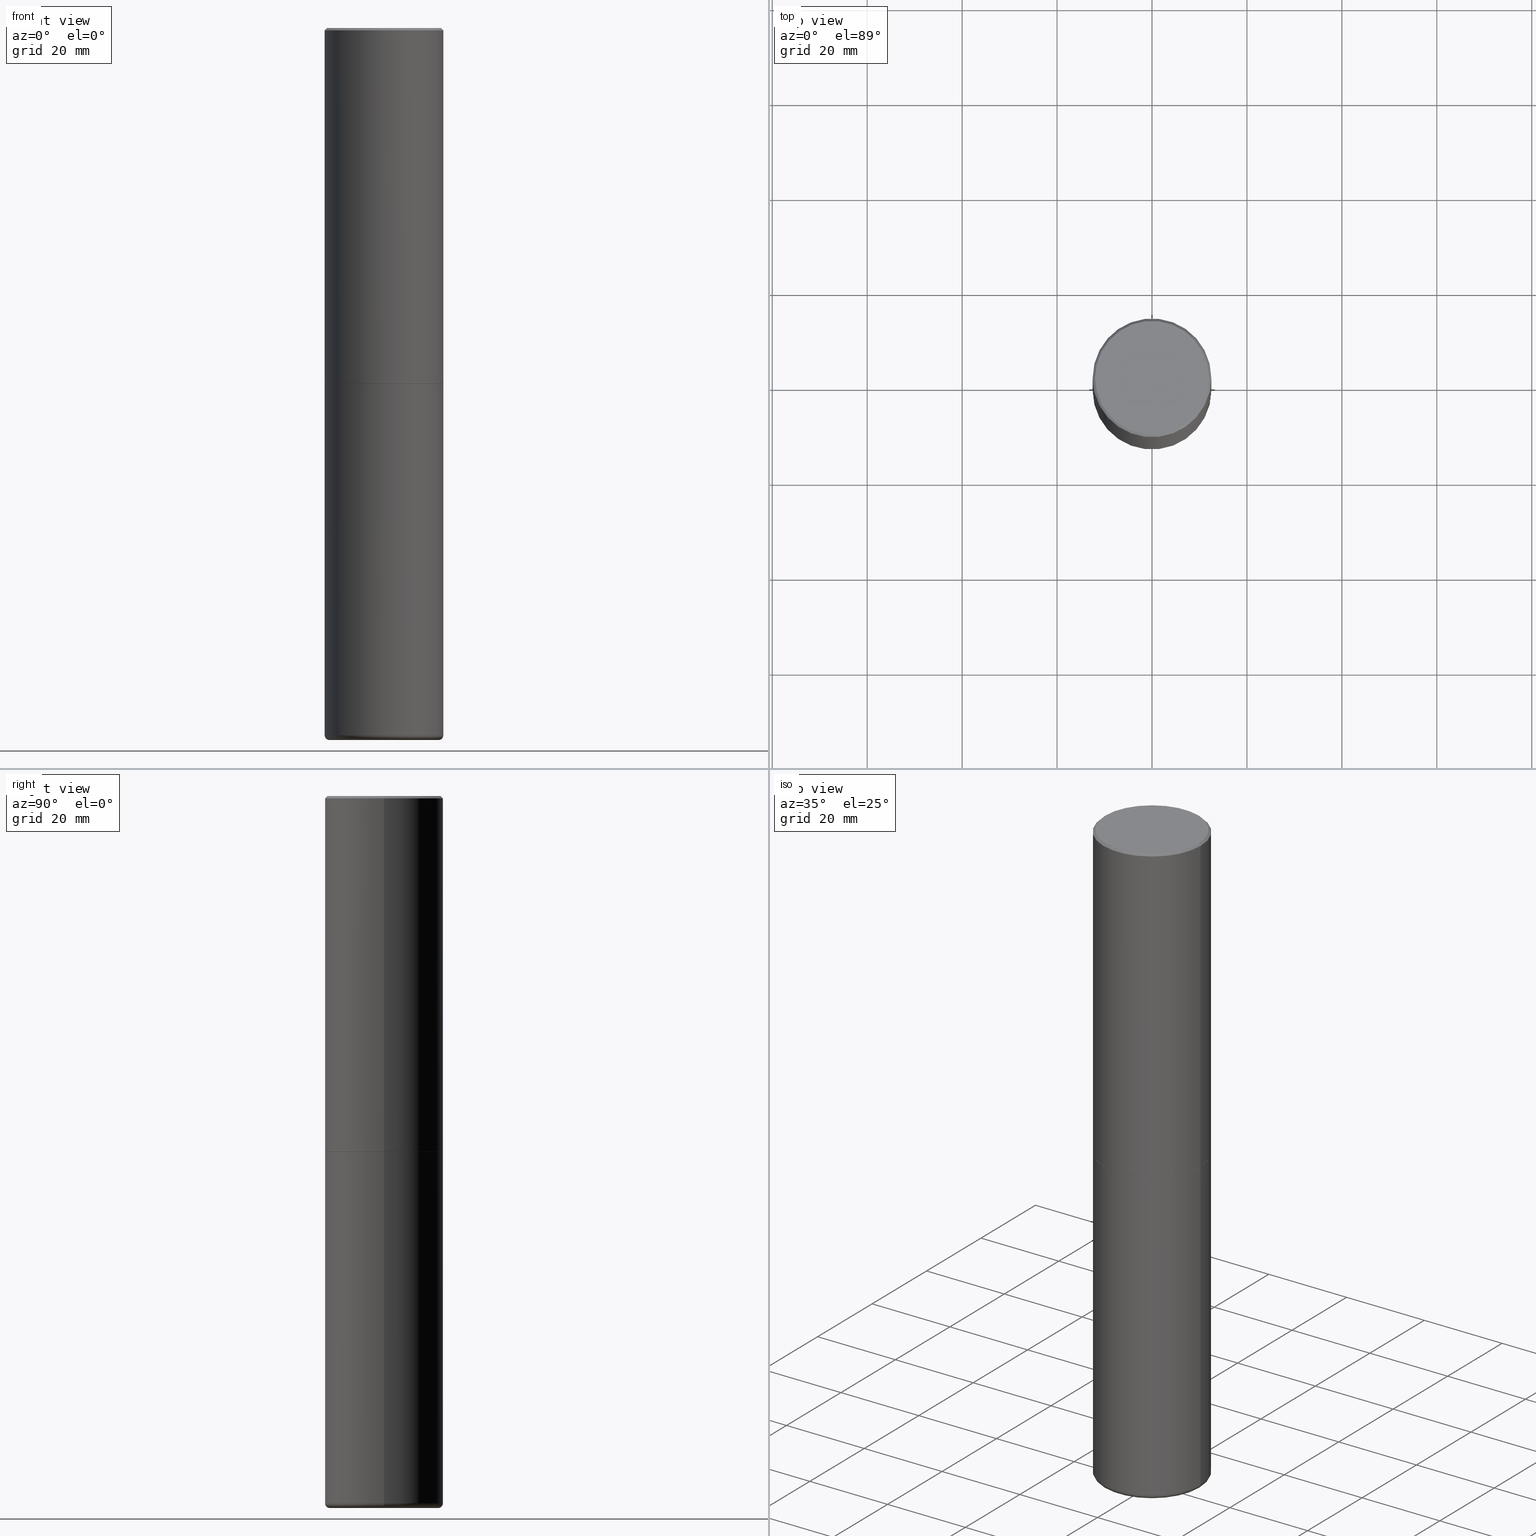
[diagram: canonical four-view strip — front | top / right | iso, engineering-drawing reading convention]
A machine part, canonical four-view strip (front | top / right | iso — engineering-drawing reading convention). The complete STEP part file that produces these views, byte-faithful:
ISO-10303-21;
HEADER;
FILE_DESCRIPTION (( 'STEP AP203' ),
    '1' );
FILE_NAME ('74573.STEP',
    '2024-03-06T15:31:16',
    ( '' ),
    ( '' ),
    'SwSTEP 2.0',
    'SolidWorks 2023',
    '' );
FILE_SCHEMA (( 'CONFIG_CONTROL_DESIGN' ));
ENDSEC;

DATA;
#1 = PRODUCT_DEFINITION ( 'UNKNOWN', '', #417, #48 ) ;
#2 = DIRECTION ( 'NONE',  ( 1.000000000000000000, -6.982962677686266711E-15, 4.875605319575677862E-29 ) ) ;
#3 = DIRECTION ( 'NONE',  ( -2.445468806185136597E-29, 3.491481338843145583E-15, 1.000000000000000000 ) ) ;
#4 = CARTESIAN_POINT ( 'NONE',  ( 4.071020515907357082E-45, -5.812338364483744108E-31, -1.664719871139160491E-16 ) ) ;
#5 = CIRCLE ( 'NONE', #205, 0.4921499999999999764 ) ;
#6 = CARTESIAN_POINT ( 'NONE',  ( 0.4921499999999999764, -1.374596203102545079E-14, -2.952700000000000102 ) ) ;
#7 = CARTESIAN_POINT ( 'NONE',  ( -0.4921499999999999764, 3.366835455046432478E-15, -0.02000000000000010797 ) ) ;
#8 = MANIFOLD_SOLID_BREP ( 'Body-Move/Copy2[1]', #270 ) ;
#9 = LINE ( 'NONE', #358, #70 ) ;
#10 = PRODUCT_DEFINITION_SHAPE ( 'NONE', 'NONE',  #1 ) ;
#11 = EDGE_CURVE ( 'NONE', #30, #402, #120, .T. ) ;
#12 = AXIS2_PLACEMENT_3D ( 'NONE', #4, #268, #2 ) ;
#13 = EDGE_LOOP ( 'NONE', ( #55, #191 ) ) ;
#14 = MECHANICAL_CONTEXT ( 'NONE', #296, 'mechanical' ) ;
#15 = ORIENTED_EDGE ( 'NONE', *, *, #50, .F. ) ;
#16 = AXIS2_PLACEMENT_3D ( 'NONE', #38, #393, #144 ) ;
#17 = AXIS2_PLACEMENT_3D ( 'NONE', #143, #330, #264 ) ;
#18 = EDGE_CURVE ( 'NONE', #343, #65, #372, .T. ) ;
#19 = ORIENTED_EDGE ( 'NONE', *, *, #355, .T. ) ;
#20 = DIRECTION ( 'NONE',  ( 1.000000000000000000, -6.982962677686269077E-15, 0.000000000000000000 ) ) ;
#21 = DIRECTION ( 'NONE',  ( -1.000000000000000000, 6.982962677686265922E-15, -4.876176775795935793E-29 ) ) ;
#22 = DIRECTION ( 'NONE',  ( -2.445468806185136597E-29, 3.491481338843145583E-15, 1.000000000000000000 ) ) ;
#23 = EDGE_LOOP ( 'NONE', ( #15, #127, #347, #285 ) ) ;
#24 = ORIENTED_EDGE ( 'NONE', *, *, #117, .F. ) ;
#25 = CARTESIAN_POINT ( 'NONE',  ( -0.4921500000000000874, -1.698444260774444222E-14, -5.866100000000000314 ) ) ;
#26 = AXIS2_PLACEMENT_3D ( 'NONE', #134, #260, #130 ) ;
#27 = CARTESIAN_POINT ( 'NONE',  ( 1.434536456396262923E-28, -2.048137868178777591E-14, -5.866100000000000314 ) ) ;
#28 = CARTESIAN_POINT ( 'NONE',  ( 0.000000000000000000, 0.000000000000000000, 0.000000000000000000 ) ) ;
#29 = ORIENTED_EDGE ( 'NONE', *, *, #187, .T. ) ;
#30 = VERTEX_POINT ( 'NONE', #408 ) ;
#31 = DIRECTION ( 'NONE',  ( 1.000000000000000000, -6.982962677686268288E-15, 0.000000000000000000 ) ) ;
#32 = DIRECTION ( 'NONE',  ( 1.000000000000000000, -6.982962677686268288E-15, 0.000000000000000000 ) ) ;
#33 = LINE ( 'NONE', #259, #392 ) ;
#34 = AXIS2_PLACEMENT_3D ( 'NONE', #226, #352, #21 ) ;
#35 = APPROVAL_PERSON_ORGANIZATION ( #252, #44, #336 ) ;
#36 =( CONVERSION_BASED_UNIT ( 'INCH', #37 ) LENGTH_UNIT ( ) NAMED_UNIT ( #391 ) );
#37 = LENGTH_MEASURE_WITH_UNIT ( LENGTH_MEASURE( 0.02539999999999999897 ), #333 );
#38 = CARTESIAN_POINT ( 'NONE',  ( 7.220735744022852519E-29, -1.030929694920215502E-14, -2.952700000000000102 ) ) ;
#39 = AXIS2_PLACEMENT_3D ( 'NONE', #199, #101, #227 ) ;
#40 = LOCAL_TIME ( 10, 31, 16.00000000000000000, #119 ) ;
#41 = DIRECTION ( 'NONE',  ( 1.000000000000000000, -6.982962677686265922E-15, 4.876176775795935793E-29 ) ) ;
#42 = EDGE_CURVE ( 'NONE', #65, #158, #179, .T. ) ;
#43 = DATE_AND_TIME ( #178, #368 ) ;
#44 = APPROVAL ( #122, 'UNSPECIFIED' ) ;
#45 = CONICAL_SURFACE ( 'NONE', #91, 0.4911499999999999755, 0.7853981633977213939 ) ;
#46 = LOCAL_TIME ( 10, 31, 16.00000000000000000, #56 ) ;
#47 = CALENDAR_DATE ( 2024, 6, 3 ) ;
#48 = DESIGN_CONTEXT ( 'detailed design', #207, 'design' ) ;
#49 = CARTESIAN_POINT ( 'NONE',  ( 4.890937612370299433E-31, -6.982962677686328587E-17, -0.02000000000000010797 ) ) ;
#50 = EDGE_CURVE ( 'NONE', #30, #170, #75, .T. ) ;
#51 = DATE_TIME_ROLE ( 'classification_date' ) ;
#52 = CARTESIAN_POINT ( 'NONE',  ( -0.4911499999999999755, -6.819466302516422338E-15, -2.952700000000000102 ) ) ;
#53 = COORDINATED_UNIVERSAL_TIME_OFFSET ( 5, 0, .BEHIND. ) ;
#54 = ORIENTED_EDGE ( 'NONE', *, *, #92, .T. ) ;
#55 = ORIENTED_EDGE ( 'NONE', *, *, #18, .F. ) ;
#56 = COORDINATED_UNIVERSAL_TIME_OFFSET ( 5, 0, .BEHIND. ) ;
#57 = CONICAL_SURFACE ( 'NONE', #114, 0.4921499999999999764, 0.7853981633974479459 ) ;
#58 = APPROVAL_PERSON_ORGANIZATION ( #250, #342, #366 ) ;
#59 = EDGE_CURVE ( 'NONE', #188, #170, #304, .T. ) ;
#60 = EDGE_LOOP ( 'NONE', ( #24, #321 ) ) ;
#61 = CARTESIAN_POINT ( 'NONE',  ( -0.4527499999999999858, -1.726439644563392242E-14, -5.866100000000000314 ) ) ;
#62 = VERTEX_POINT ( 'NONE', #181 ) ;
#63 = CARTESIAN_POINT ( 'NONE',  ( 0.000000000000000000, 0.000000000000000000, 0.000000000000000000 ) ) ;
#64 = PRODUCT_RELATED_PRODUCT_CATEGORY ( 'detail', '', ( #228 ) ) ;
#65 = VERTEX_POINT ( 'NONE', #308 ) ;
#66 = DIRECTION ( 'NONE',  ( -6.982962677686266711E-15, -1.000000000000000000, 3.491481338843145583E-15 ) ) ;
#67 = FACE_OUTER_BOUND ( 'NONE', #340, .T. ) ;
#68 = PLANE ( 'NONE',  #292 ) ;
#69 = EDGE_CURVE ( 'NONE', #320, #62, #135, .T. ) ;
#70 = VECTOR ( 'NONE', #269, 39.37007874015748143 ) ;
#71 = FACE_OUTER_BOUND ( 'NONE', #371, .T. ) ;
#72 = FACE_OUTER_BOUND ( 'NONE', #313, .T. ) ;
#73 = CC_DESIGN_DATE_AND_TIME_ASSIGNMENT ( #116, #51, ( #249 ) ) ;
#74 = DIRECTION ( 'NONE',  ( -1.000000000000000000, 6.982962677686265922E-15, 0.000000000000000000 ) ) ;
#75 = CIRCLE ( 'NONE', #145, 0.03940000000000033753 ) ;
#76 = ADVANCED_FACE ( 'NONE', ( #397 ), #109, .T. ) ;
#77 =( NAMED_UNIT ( * ) SI_UNIT ( $, .STERADIAN. ) SOLID_ANGLE_UNIT ( ) );
#78 = FACE_OUTER_BOUND ( 'NONE', #312, .T. ) ;
#79 = PERSON_AND_ORGANIZATION_ROLE ( 'creator' ) ;
#80 = CC_DESIGN_PERSON_AND_ORGANIZATION_ASSIGNMENT ( #272, #215, ( #228 ) ) ;
#81 = PERSON_AND_ORGANIZATION ( #345, #410 ) ;
#82 = CIRCLE ( 'NONE', #356, 0.03940000000000033753 ) ;
#83 = AXIS2_PLACEMENT_3D ( 'NONE', #113, #234, #361 ) ;
#84 = APPROVAL_ROLE ( '' ) ;
#85 = CARTESIAN_POINT ( 'NONE',  ( -0.4921499999999999764, -1.189840174145163414E-14, -2.952700000000000102 ) ) ;
#86 = COORDINATED_UNIVERSAL_TIME_OFFSET ( 5, 0, .BEHIND. ) ;
#87 = VERTEX_POINT ( 'NONE', #85 ) ;
#88 = VERTEX_POINT ( 'NONE', #161 ) ;
#89 = CALENDAR_DATE ( 2024, 6, 3 ) ;
#90 = ORIENTED_EDGE ( 'NONE', *, *, #247, .T. ) ;
#91 = AXIS2_PLACEMENT_3D ( 'NONE', #353, #100, #224 ) ;
#92 = EDGE_CURVE ( 'NONE', #87, #338, #339, .T. ) ;
#93 = ORIENTED_EDGE ( 'NONE', *, *, #388, .F. ) ;
#94 = ORIENTED_EDGE ( 'NONE', *, *, #69, .F. ) ;
#95 = CARTESIAN_POINT ( 'NONE',  ( 0.4911499999999999755, -1.373897906834776478E-14, -2.952700000000000102 ) ) ;
#96 = CYLINDRICAL_SURFACE ( 'NONE', #335, 0.4921500000000000874 ) ;
#97 = DIRECTION ( 'NONE',  ( 1.000000000000000000, -6.982962677686265922E-15, 0.000000000000000000 ) ) ;
#98 = EDGE_CURVE ( 'NONE', #278, #223, #364, .T. ) ;
#99 = ORIENTED_EDGE ( 'NONE', *, *, #103, .T. ) ;
#100 = DIRECTION ( 'NONE',  ( -2.445468806185136597E-29, 3.491481338843145583E-15, 1.000000000000000000 ) ) ;
#101 = DIRECTION ( 'NONE',  ( -2.445468806185136597E-29, 3.491481338843145583E-15, 1.000000000000000000 ) ) ;
#102 = FACE_OUTER_BOUND ( 'NONE', #13, .T. ) ;
#103 = EDGE_CURVE ( 'NONE', #88, #62, #389, .T. ) ;
#104 = DIRECTION ( 'NONE',  ( -2.445468806185136877E-29, 3.491481338843145188E-15, 1.000000000000000000 ) ) ;
#105 = DIRECTION ( 'NONE',  ( 1.000000000000000000, -6.982962677686265922E-15, 0.000000000000000000 ) ) ;
#106 = FACE_OUTER_BOUND ( 'NONE', #60, .T. ) ;
#107 = ADVANCED_FACE ( 'NONE', ( #78 ), #157, .T. ) ;
#108 = EDGE_LOOP ( 'NONE', ( #182, #54 ) ) ;
#109 = TOROIDAL_SURFACE ( 'NONE', #140, 0.4527499999999999858, 0.03940000000000033753 ) ;
#110 = CIRCLE ( 'NONE', #386, 0.4721500000000000696 ) ;
#111 = DIRECTION ( 'NONE',  ( 2.445468806185136597E-29, -3.491481338843145583E-15, -1.000000000000000000 ) ) ;
#112 = CARTESIAN_POINT ( 'NONE',  ( 4.890937612370299433E-31, -6.982962677686328587E-17, -0.02000000000000010797 ) ) ;
#113 = CARTESIAN_POINT ( 'NONE',  ( 4.488705641877112035E-29, -3.487222041955580978E-14, -5.905500000000000860 ) ) ;
#114 = AXIS2_PLACEMENT_3D ( 'NONE', #383, #111, #173 ) ;
#115 = LOCAL_TIME ( 10, 31, 16.00000000000000000, #53 ) ;
#116 = DATE_AND_TIME ( #47, #40 ) ;
#117 = EDGE_CURVE ( 'NONE', #402, #30, #409, .T. ) ;
#118 = DIRECTION ( 'NONE',  ( -2.445468806185136877E-29, 3.491481338843145188E-15, 1.000000000000000000 ) ) ;
#119 = COORDINATED_UNIVERSAL_TIME_OFFSET ( 5, 0, .BEHIND. ) ;
#120 = CIRCLE ( 'NONE', #39, 0.4527499999999999858 ) ;
#121 = AXIS2_PLACEMENT_3D ( 'NONE', #328, #169, #295 ) ;
#122 = APPROVAL_STATUS ( 'not_yet_approved' ) ;
#123 = EDGE_CURVE ( 'NONE', #343, #88, #280, .T. ) ;
#124 = PERSON_AND_ORGANIZATION_ROLE ( 'design_supplier' ) ;
#125 = ORIENTED_EDGE ( 'NONE', *, *, #18, .T. ) ;
#126 = EDGE_LOOP ( 'NONE', ( #29, #155, #290, #405 ) ) ;
#127 = ORIENTED_EDGE ( 'NONE', *, *, #11, .T. ) ;
#128 = VECTOR ( 'NONE', #380, 39.37007874015748143 ) ;
#129 = CC_DESIGN_PERSON_AND_ORGANIZATION_ASSIGNMENT ( #334, #208, ( #417 ) ) ;
#130 = DIRECTION ( 'NONE',  ( 1.000000000000000000, -6.982962677686265922E-15, 4.876176775795935793E-29 ) ) ;
#131 = DIRECTION ( 'NONE',  ( -2.445468806185136597E-29, 3.491481338843145583E-15, 1.000000000000000000 ) ) ;
#132 = ADVANCED_FACE ( 'NONE', ( #197 ), #258, .F. ) ;
#133 = DIRECTION ( 'NONE',  ( 1.000000000000000000, -6.982962677686265922E-15, 4.876176775795935793E-29 ) ) ;
#134 = CARTESIAN_POINT ( 'NONE',  ( 0.000000000000000000, 0.000000000000000000, 0.000000000000000000 ) ) ;
#135 = CIRCLE ( 'NONE', #378, 0.4921499999999999764 ) ;
#136 = DIRECTION ( 'NONE',  ( -1.000000000000000000, 6.982962677686265922E-15, -4.876176775795935793E-29 ) ) ;
#137 = DIRECTION ( 'NONE',  ( 1.000000000000000000, -6.982962677686266711E-15, 4.875605319575677862E-29 ) ) ;
#138 = DIRECTION ( 'NONE',  ( 1.000000000000000000, -6.982962677686268288E-15, 0.000000000000000000 ) ) ;
#139 = APPROVAL ( #367, 'UNSPECIFIED' ) ;
#140 = AXIS2_PLACEMENT_3D ( 'NONE', #175, #341, #192 ) ;
#141 = CC_DESIGN_APPROVAL ( #44, ( #417 ) ) ;
#142 = ORIENTED_EDGE ( 'NONE', *, *, #263, .F. ) ;
#143 = CARTESIAN_POINT ( 'NONE',  ( 4.890937612370299433E-31, -6.982962677686328587E-17, -0.02000000000000010797 ) ) ;
#144 = DIRECTION ( 'NONE',  ( 1.000000000000000000, -6.982962677686265922E-15, 0.000000000000000000 ) ) ;
#145 = AXIS2_PLACEMENT_3D ( 'NONE', #61, #189, #369 ) ;
#146 = APPLICATION_PROTOCOL_DEFINITION ( 'international standard', 'config_control_design', 1994, #207 ) ;
#147 = MANIFOLD_SOLID_BREP ( 'Body-Move/Copy2[2]', #225 ) ;
#148 = ADVANCED_FACE ( 'NONE', ( #67 ), #45, .T. ) ;
#149 = CIRCLE ( 'NONE', #16, 0.4921499999999999764 ) ;
#150 = ORIENTED_EDGE ( 'NONE', *, *, #294, .F. ) ;
#151 = CC_DESIGN_APPROVAL ( #342, ( #1 ) ) ;
#152 = ORIENTED_EDGE ( 'NONE', *, *, #388, .T. ) ;
#153 = DATE_TIME_ROLE ( 'creation_date' ) ;
#154 = ORIENTED_EDGE ( 'NONE', *, *, #98, .T. ) ;
#155 = ORIENTED_EDGE ( 'NONE', *, *, #294, .T. ) ;
#156 = DIRECTION ( 'NONE',  ( 1.000000000000000000, -6.982962677686265922E-15, 0.000000000000000000 ) ) ;
#157 = CYLINDRICAL_SURFACE ( 'NONE', #253, 0.4921499999999999764 ) ;
#158 = VERTEX_POINT ( 'NONE', #193 ) ;
#159 = EDGE_CURVE ( 'NONE', #65, #343, #195, .T. ) ;
#160 = TOROIDAL_SURFACE ( 'NONE', #318, 0.4527499999999999858, 0.03940000000000033753 ) ;
#161 = CARTESIAN_POINT ( 'NONE',  ( 0.4921500000000003094, -1.374247054968661252E-14, -2.951700000000000212 ) ) ;
#162 = CARTESIAN_POINT ( 'NONE',  ( 0.4921500000000000874, -2.391804376361107326E-14, -5.866100000000000314 ) ) ;
#163 = LINE ( 'NONE', #374, #128 ) ;
#164 = DIRECTION ( 'NONE',  ( -2.445468806185136597E-29, 3.491481338843145583E-15, 1.000000000000000000 ) ) ;
#165 = VECTOR ( 'NONE', #221, 39.37007874015748143 ) ;
#166 = CARTESIAN_POINT ( 'NONE',  ( 3.297005828269570364E-15, 0.4721500000000000696, -1.731738907691749419E-15 ) ) ;
#167 = EDGE_LOOP ( 'NONE', ( #154, #19 ) ) ;
#168 = EDGE_CURVE ( 'NONE', #170, #87, #163, .T. ) ;
#169 = DIRECTION ( 'NONE',  ( 0.000000000000000000, 0.000000000000000000, 1.000000000000000000 ) ) ;
#170 = VERTEX_POINT ( 'NONE', #25 ) ;
#171 = CARTESIAN_POINT ( 'NONE',  ( 7.218290275216666916E-29, -1.030580546786331359E-14, -2.951700000000000212 ) ) ;
#172 = AXIS2_PLACEMENT_3D ( 'NONE', #348, #198, #31 ) ;
#173 = DIRECTION ( 'NONE',  ( -1.000000000000000000, 6.982962677686265922E-15, 0.000000000000000000 ) ) ;
#174 = UNCERTAINTY_MEASURE_WITH_UNIT (LENGTH_MEASURE( 1.000000000000000082E-05 ), #36, 'distance_accuracy_value', 'NONE');
#175 = CARTESIAN_POINT ( 'NONE',  ( 1.434536456396262923E-28, -2.048137868178777591E-14, -5.866100000000000314 ) ) ;
#176 = DATE_AND_TIME ( #396, #115 ) ;
#177 = CC_DESIGN_APPROVAL ( #139, ( #249 ) ) ;
#178 = CALENDAR_DATE ( 2024, 6, 3 ) ;
#179 = LINE ( 'NONE', #52, #265 ) ;
#180 = COORDINATED_UNIVERSAL_TIME_OFFSET ( 5, 0, .BEHIND. ) ;
#181 = CARTESIAN_POINT ( 'NONE',  ( 0.4921499999999999764, -3.446223716380122349E-15, -0.02000000000000010797 ) ) ;
#182 = ORIENTED_EDGE ( 'NONE', *, *, #307, .T. ) ;
#183 = APPROVAL_DATE_TIME ( #303, #44 ) ;
#184 = AXIS2_PLACEMENT_3D ( 'NONE', #112, #297, #74 ) ;
#185 = CONICAL_SURFACE ( 'NONE', #332, 0.4911499999999999755, 0.7853981633977213939 ) ;
#186 = ORIENTED_EDGE ( 'NONE', *, *, #123, .T. ) ;
#187 = EDGE_CURVE ( 'NONE', #88, #158, #349, .T. ) ;
#188 = VERTEX_POINT ( 'NONE', #162 ) ;
#189 = DIRECTION ( 'NONE',  ( 7.105427357601001859E-15, 1.000000000000000000, -3.491481338843145583E-15 ) ) ;
#190 = EDGE_CURVE ( 'NONE', #402, #188, #82, .T. ) ;
#191 = ORIENTED_EDGE ( 'NONE', *, *, #159, .F. ) ;
#192 = DIRECTION ( 'NONE',  ( 1.000000000000000000, -6.982962677686269077E-15, 4.883557194083114022E-29 ) ) ;
#193 = CARTESIAN_POINT ( 'NONE',  ( -0.4921500000000003094, -1.690881473276751010E-15, -2.951700000000000212 ) ) ;
#194 = ORIENTED_EDGE ( 'NONE', *, *, #190, .F. ) ;
#195 = CIRCLE ( 'NONE', #172, 0.4911499999999999755 ) ;
#196 = FACE_OUTER_BOUND ( 'NONE', #309, .T. ) ;
#197 = FACE_OUTER_BOUND ( 'NONE', #108, .T. ) ;
#198 = DIRECTION ( 'NONE',  ( -2.445468806185136597E-29, 3.491481338843145583E-15, 1.000000000000000000 ) ) ;
#199 = CARTESIAN_POINT ( 'NONE',  ( 1.444171603492632494E-28, -2.061894304653819828E-14, -5.905500000000000860 ) ) ;
#200 = CC_DESIGN_DATE_AND_TIME_ASSIGNMENT ( #245, #153, ( #1 ) ) ;
#201 = CARTESIAN_POINT ( 'NONE',  ( 0.4911499999999999755, -1.373897906834776478E-14, -2.952700000000000102 ) ) ;
#202 = CARTESIAN_POINT ( 'NONE',  ( 4.071020515907357082E-45, -5.812338364483744108E-31, -1.664719871139160491E-16 ) ) ;
#203 = ADVANCED_FACE ( 'NONE', ( #375 ), #96, .T. ) ;
#204 = FACE_OUTER_BOUND ( 'NONE', #262, .T. ) ;
#205 = AXIS2_PLACEMENT_3D ( 'NONE', #261, #131, #97 ) ;
#206 = ADVANCED_FACE ( 'NONE', ( #317 ), #160, .T. ) ;
#207 = APPLICATION_CONTEXT ( 'configuration controlled 3d designs of mechanical parts and assemblies' ) ;
#208 = PERSON_AND_ORGANIZATION_ROLE ( 'creator' ) ;
#209 = AXIS2_PLACEMENT_3D ( 'NONE', #401, #301, #105 ) ;
#210 = PERSON_AND_ORGANIZATION ( #345, #410 ) ;
#211 = ORIENTED_EDGE ( 'NONE', *, *, #159, .T. ) ;
#212 = SHAPE_DEFINITION_REPRESENTATION ( #10, #415 ) ;
#213 = ORIENTED_EDGE ( 'NONE', *, *, #239, .T. ) ;
#214 = ORIENTED_EDGE ( 'NONE', *, *, #59, .T. ) ;
#215 = PERSON_AND_ORGANIZATION_ROLE ( 'design_owner' ) ;
#216 = ORIENTED_EDGE ( 'NONE', *, *, #92, .F. ) ;
#217 = DIRECTION ( 'NONE',  ( -2.445468806185136597E-29, 3.491481338843145583E-15, 1.000000000000000000 ) ) ;
#218 = ADVANCED_FACE ( 'NONE', ( #222 ), #346, .T. ) ;
#219 = ORIENTED_EDGE ( 'NONE', *, *, #406, .T. ) ;
#220 = EDGE_LOOP ( 'NONE', ( #214, #344, #279, #400 ) ) ;
#221 = DIRECTION ( 'NONE',  ( 0.7071067811867406405, -2.468850131084279700E-15, 0.7071067811863543939 ) ) ;
#222 = FACE_OUTER_BOUND ( 'NONE', #220, .T. ) ;
#223 = VERTEX_POINT ( 'NONE', #229 ) ;
#224 = DIRECTION ( 'NONE',  ( 1.000000000000000000, -6.982962677686268288E-15, 0.000000000000000000 ) ) ;
#225 = CLOSED_SHELL ( 'NONE', ( #300, #203, #310, #326, #291, #148, #237, #243 ) ) ;
#226 = CARTESIAN_POINT ( 'NONE',  ( 7.220735744022852519E-29, -1.030929694920215502E-14, -2.952700000000000102 ) ) ;
#227 = DIRECTION ( 'NONE',  ( 1.000000000000000000, -6.982962677686269077E-15, 0.000000000000000000 ) ) ;
#228 = PRODUCT ( '74573', '74573', '', ( #14 ) ) ;
#229 = CARTESIAN_POINT ( 'NONE',  ( 0.4721500000000000696, -3.342703923013975763E-15, -1.664719871138928270E-16 ) ) ;
#230 = ORIENTED_EDGE ( 'NONE', *, *, #168, .F. ) ;
#231 = CARTESIAN_POINT ( 'NONE',  ( -0.4921499999999999764, 3.366835455046432478E-15, -0.02000000000000010797 ) ) ;
#232 = ORIENTED_EDGE ( 'NONE', *, *, #42, .T. ) ;
#233 = AXIS2_PLACEMENT_3D ( 'NONE', #362, #217, #20 ) ;
#234 = DIRECTION ( 'NONE',  ( 2.438088387897960049E-29, -3.491481338843145188E-15, -1.000000000000000000 ) ) ;
#235 = CIRCLE ( 'NONE', #319, 0.4921500000000003094 ) ;
#236 = ORIENTED_EDGE ( 'NONE', *, *, #50, .T. ) ;
#237 = ADVANCED_FACE ( 'NONE', ( #102 ), #68, .F. ) ;
#238 = CARTESIAN_POINT ( 'NONE',  ( -0.4921500000000000874, 3.496936074043333686E-15, -2.420853904668952350E-29 ) ) ;
#239 = EDGE_CURVE ( 'NONE', #188, #338, #33, .T. ) ;
#240 = CARTESIAN_POINT ( 'NONE',  ( 7.220735744022852519E-29, -1.030929694920215502E-14, -2.952700000000000102 ) ) ;
#241 = AXIS2_PLACEMENT_3D ( 'NONE', #324, #394, #395 ) ;
#242 = DIRECTION ( 'NONE',  ( -2.445468806185136597E-29, 3.491481338843145583E-15, 1.000000000000000000 ) ) ;
#243 = ADVANCED_FACE ( 'NONE', ( #284 ), #411, .F. ) ;
#244 = APPLICATION_PROTOCOL_DEFINITION ( 'international standard', 'config_control_design', 1994, #296 ) ;
#245 = DATE_AND_TIME ( #89, #351 ) ;
#246 = PERSON_AND_ORGANIZATION ( #345, #410 ) ;
#247 = EDGE_CURVE ( 'NONE', #170, #188, #5, .T. ) ;
#248 = VECTOR ( 'NONE', #354, 39.37007874015748143 ) ;
#249 = SECURITY_CLASSIFICATION ( '', '', #403 ) ;
#250 = PERSON_AND_ORGANIZATION ( #345, #410 ) ;
#251 = ORIENTED_EDGE ( 'NONE', *, *, #59, .F. ) ;
#252 = PERSON_AND_ORGANIZATION ( #345, #410 ) ;
#253 = AXIS2_PLACEMENT_3D ( 'NONE', #28, #282, #329 ) ;
#254 =( GEOMETRIC_REPRESENTATION_CONTEXT ( 3 ) GLOBAL_UNCERTAINTY_ASSIGNED_CONTEXT ( ( #174 ) ) GLOBAL_UNIT_ASSIGNED_CONTEXT ( ( #36, #365, #77 ) ) REPRESENTATION_CONTEXT ( 'NONE', 'WORKASPACE' ) );
#255 = ORIENTED_EDGE ( 'NONE', *, *, #123, .F. ) ;
#256 = CARTESIAN_POINT ( 'NONE',  ( -0.4721500000000000696, 3.331920641658001618E-15, -1.664719871139392219E-16 ) ) ;
#257 = ORIENTED_EDGE ( 'NONE', *, *, #263, .T. ) ;
#258 = PLANE ( 'NONE',  #34 ) ;
#259 = CARTESIAN_POINT ( 'NONE',  ( 0.4921499999999999764, -3.436665081823295777E-15, 2.399810400207969603E-29 ) ) ;
#260 = DIRECTION ( 'NONE',  ( -2.445468806185136597E-29, 3.491481338843145583E-15, 1.000000000000000000 ) ) ;
#261 = CARTESIAN_POINT ( 'NONE',  ( 1.434536456396262923E-28, -2.048137868178777591E-14, -5.866100000000000314 ) ) ;
#262 = EDGE_LOOP ( 'NONE', ( #125, #232, #359, #255 ) ) ;
#263 = EDGE_CURVE ( 'NONE', #278, #320, #381, .T. ) ;
#264 = DIRECTION ( 'NONE',  ( 1.000000000000000000, -6.982962677686265922E-15, 0.000000000000000000 ) ) ;
#265 = VECTOR ( 'NONE', #404, 39.37007874015748143 ) ;
#266 = DIRECTION ( 'NONE',  ( -2.445468806185136877E-29, 3.491481338843145188E-15, 1.000000000000000000 ) ) ;
#267 = APPROVAL_PERSON_ORGANIZATION ( #246, #139, #84 ) ;
#268 = DIRECTION ( 'NONE',  ( -2.445468806185136597E-29, 3.491481338843145583E-15, 1.000000000000000000 ) ) ;
#269 = DIRECTION ( 'NONE',  ( 0.7071067811865472397, -7.319954787623254468E-15, -0.7071067811865477948 ) ) ;
#270 = CLOSED_SHELL ( 'NONE', ( #218, #76, #132, #107, #206, #379 ) ) ;
#271 = CC_DESIGN_PERSON_AND_ORGANIZATION_ASSIGNMENT ( #277, #79, ( #1 ) ) ;
#272 = PERSON_AND_ORGANIZATION ( #345, #410 ) ;
#273 = DIRECTION ( 'NONE',  ( 1.000000000000000000, -6.982962677686265922E-15, 0.000000000000000000 ) ) ;
#274 = AXIS2_PLACEMENT_3D ( 'NONE', #323, #413, #156 ) ;
#275 = CALENDAR_DATE ( 2024, 6, 3 ) ;
#276 = ORIENTED_EDGE ( 'NONE', *, *, #406, .F. ) ;
#277 = PERSON_AND_ORGANIZATION ( #345, #410 ) ;
#278 = VERTEX_POINT ( 'NONE', #256 ) ;
#279 = ORIENTED_EDGE ( 'NONE', *, *, #307, .F. ) ;
#280 = LINE ( 'NONE', #95, #165 ) ;
#281 = CARTESIAN_POINT ( 'NONE',  ( 0.4527499999999999858, -2.364291503411023483E-14, -5.866100000000000314 ) ) ;
#282 = DIRECTION ( 'NONE',  ( -2.445468806185136597E-29, 3.491481338843145583E-15, 1.000000000000000000 ) ) ;
#283 = ORIENTED_EDGE ( 'NONE', *, *, #117, .T. ) ;
#284 = FACE_OUTER_BOUND ( 'NONE', #167, .T. ) ;
#285 = ORIENTED_EDGE ( 'NONE', *, *, #247, .F. ) ;
#286 = ORIENTED_EDGE ( 'NONE', *, *, #350, .T. ) ;
#287 = CYLINDRICAL_SURFACE ( 'NONE', #399, 0.4921500000000000874 ) ;
#288 = ORIENTED_EDGE ( 'NONE', *, *, #98, .F. ) ;
#289 = CARTESIAN_POINT ( 'NONE',  ( 1.434536456396262923E-28, -2.048137868178777591E-14, -5.866100000000000314 ) ) ;
#290 = ORIENTED_EDGE ( 'NONE', *, *, #350, .F. ) ;
#291 = ADVANCED_FACE ( 'NONE', ( #196 ), #287, .T. ) ;
#292 = AXIS2_PLACEMENT_3D ( 'NONE', #418, #325, #377 ) ;
#293 = DIRECTION ( 'NONE',  ( 2.438088387897960049E-29, -3.491481338843145188E-15, -1.000000000000000000 ) ) ;
#294 = EDGE_CURVE ( 'NONE', #158, #320, #299, .T. ) ;
#295 = DIRECTION ( 'NONE',  ( 1.000000000000000000, 0.000000000000000000, 0.000000000000000000 ) ) ;
#296 = APPLICATION_CONTEXT ( 'configuration controlled 3d designs of mechanical parts and assemblies' ) ;
#297 = DIRECTION ( 'NONE',  ( 2.445468806185136597E-29, -3.491481338843145583E-15, -1.000000000000000000 ) ) ;
#298 = VECTOR ( 'NONE', #266, 39.37007874015748143 ) ;
#299 = LINE ( 'NONE', #238, #298 ) ;
#300 = ADVANCED_FACE ( 'NONE', ( #204 ), #185, .T. ) ;
#301 = DIRECTION ( 'NONE',  ( -2.445468806185136597E-29, 3.491481338843145583E-15, 1.000000000000000000 ) ) ;
#302 = CARTESIAN_POINT ( 'NONE',  ( 0.4527499999999999858, -2.378047939886065405E-14, -5.905500000000000860 ) ) ;
#303 = DATE_AND_TIME ( #275, #46 ) ;
#304 = CIRCLE ( 'NONE', #311, 0.4921499999999999764 ) ;
#305 = APPROVAL_STATUS ( 'not_yet_approved' ) ;
#306 = APPROVAL_DATE_TIME ( #43, #139 ) ;
#307 = EDGE_CURVE ( 'NONE', #338, #87, #149, .T. ) ;
#308 = CARTESIAN_POINT ( 'NONE',  ( -0.4911499999999999755, -6.814167848168199148E-15, -2.952700000000000102 ) ) ;
#309 = EDGE_LOOP ( 'NONE', ( #150, #219, #99, #94 ) ) ;
#310 = ADVANCED_FACE ( 'NONE', ( #72 ), #363, .T. ) ;
#311 = AXIS2_PLACEMENT_3D ( 'NONE', #27, #22, #337 ) ;
#312 = EDGE_LOOP ( 'NONE', ( #230, #90, #213, #216 ) ) ;
#313 = EDGE_LOOP ( 'NONE', ( #373, #152, #286, #142 ) ) ;
#314 = CARTESIAN_POINT ( 'NONE',  ( 0.000000000000000000, 0.000000000000000000, 0.000000000000000000 ) ) ;
#315 = CC_DESIGN_PERSON_AND_ORGANIZATION_ASSIGNMENT ( #81, #398, ( #249 ) ) ;
#316 = ORIENTED_EDGE ( 'NONE', *, *, #69, .T. ) ;
#317 = FACE_OUTER_BOUND ( 'NONE', #23, .T. ) ;
#318 = AXIS2_PLACEMENT_3D ( 'NONE', #289, #164, #322 ) ;
#319 = AXIS2_PLACEMENT_3D ( 'NONE', #171, #387, #390 ) ;
#320 = VERTEX_POINT ( 'NONE', #7 ) ;
#321 = ORIENTED_EDGE ( 'NONE', *, *, #11, .F. ) ;
#322 = DIRECTION ( 'NONE',  ( 1.000000000000000000, -6.982962677686269077E-15, 4.883557194083114022E-29 ) ) ;
#323 = CARTESIAN_POINT ( 'NONE',  ( 7.218290275216666916E-29, -1.030580546786331359E-14, -2.951700000000000212 ) ) ;
#324 = CARTESIAN_POINT ( 'NONE',  ( 7.220735744022852519E-29, -1.030929694920215502E-14, -2.952700000000000102 ) ) ;
#325 = DIRECTION ( 'NONE',  ( -2.438088387897960049E-29, 3.491481338843145188E-15, 1.000000000000000000 ) ) ;
#326 = ADVANCED_FACE ( 'NONE', ( #71 ), #57, .T. ) ;
#327 = VECTOR ( 'NONE', #118, 39.37007874015748143 ) ;
#328 = CARTESIAN_POINT ( 'NONE',  ( 0.000000000000000000, 0.000000000000000000, 0.000000000000000000 ) ) ;
#329 = DIRECTION ( 'NONE',  ( 1.000000000000000000, -6.982962677686265922E-15, 4.876176775795935793E-29 ) ) ;
#330 = DIRECTION ( 'NONE',  ( -2.445468806185136597E-29, 3.491481338843145583E-15, 1.000000000000000000 ) ) ;
#331 = PLANE ( 'NONE',  #83 ) ;
#332 = AXIS2_PLACEMENT_3D ( 'NONE', #240, #360, #138 ) ;
#333 =( LENGTH_UNIT ( ) NAMED_UNIT ( * ) SI_UNIT ( $, .METRE. ) );
#334 = PERSON_AND_ORGANIZATION ( #345, #410 ) ;
#335 = AXIS2_PLACEMENT_3D ( 'NONE', #63, #414, #133 ) ;
#336 = APPROVAL_ROLE ( '' ) ;
#337 = DIRECTION ( 'NONE',  ( 1.000000000000000000, -6.982962677686265922E-15, 0.000000000000000000 ) ) ;
#338 = VERTEX_POINT ( 'NONE', #6 ) ;
#339 = CIRCLE ( 'NONE', #209, 0.4921499999999999764 ) ;
#340 = EDGE_LOOP ( 'NONE', ( #376, #211, #186, #276 ) ) ;
#341 = DIRECTION ( 'NONE',  ( -2.445468806185136597E-29, 3.491481338843145583E-15, 1.000000000000000000 ) ) ;
#342 = APPROVAL ( #305, 'UNSPECIFIED' ) ;
#343 = VERTEX_POINT ( 'NONE', #201 ) ;
#344 = ORIENTED_EDGE ( 'NONE', *, *, #168, .T. ) ;
#345 = PERSON ( 'UNSPECIFIED', 'UNSPECIFIED', 'UNSPECIFIED', ('UNSPECIFIED'), ('UNSPECIFIED'), ('UNSPECIFIED') ) ;
#346 = CYLINDRICAL_SURFACE ( 'NONE', #26, 0.4921499999999999764 ) ;
#347 = ORIENTED_EDGE ( 'NONE', *, *, #190, .T. ) ;
#348 = CARTESIAN_POINT ( 'NONE',  ( 7.220735744022852519E-29, -1.030929694920215502E-14, -2.952700000000000102 ) ) ;
#349 = CIRCLE ( 'NONE', #274, 0.4921500000000003094 ) ;
#350 = EDGE_CURVE ( 'NONE', #62, #320, #416, .T. ) ;
#351 = LOCAL_TIME ( 10, 31, 16.00000000000000000, #86 ) ;
#352 = DIRECTION ( 'NONE',  ( 2.438088387897960049E-29, -3.491481338843145188E-15, -1.000000000000000000 ) ) ;
#353 = CARTESIAN_POINT ( 'NONE',  ( 7.220735744022852519E-29, -1.030929694920215502E-14, -2.952700000000000102 ) ) ;
#354 = DIRECTION ( 'NONE',  ( -0.7071067811865472397, 2.468850131082253905E-15, -0.7071067811865477948 ) ) ;
#355 = EDGE_CURVE ( 'NONE', #223, #278, #110, .T. ) ;
#356 = AXIS2_PLACEMENT_3D ( 'NONE', #281, #66, #32 ) ;
#357 = CC_DESIGN_SECURITY_CLASSIFICATION ( #249, ( #417 ) ) ;
#358 = CARTESIAN_POINT ( 'NONE',  ( 0.4921499999999999764, -3.446223716380122349E-15, -0.02000000000000010797 ) ) ;
#359 = ORIENTED_EDGE ( 'NONE', *, *, #187, .F. ) ;
#360 = DIRECTION ( 'NONE',  ( -2.445468806185136597E-29, 3.491481338843145583E-15, 1.000000000000000000 ) ) ;
#361 = DIRECTION ( 'NONE',  ( -1.000000000000000000, 6.982962677686265922E-15, -4.876176775795935793E-29 ) ) ;
#362 = CARTESIAN_POINT ( 'NONE',  ( 1.444171603492632494E-28, -2.061894304653819828E-14, -5.905500000000000860 ) ) ;
#363 = CONICAL_SURFACE ( 'NONE', #184, 0.4921499999999999764, 0.7853981633974479459 ) ;
#364 = CIRCLE ( 'NONE', #12, 0.4721500000000000696 ) ;
#365 =( NAMED_UNIT ( * ) PLANE_ANGLE_UNIT ( ) SI_UNIT ( $, .RADIAN. ) );
#366 = APPROVAL_ROLE ( '' ) ;
#367 = APPROVAL_STATUS ( 'not_yet_approved' ) ;
#368 = LOCAL_TIME ( 10, 31, 16.00000000000000000, #180 ) ;
#369 = DIRECTION ( 'NONE',  ( -1.000000000000000000, 7.105427357601014480E-15, 0.000000000000000000 ) ) ;
#370 = APPROVAL_DATE_TIME ( #176, #342 ) ;
#371 = EDGE_LOOP ( 'NONE', ( #93, #288, #257, #316 ) ) ;
#372 = CIRCLE ( 'NONE', #241, 0.4911499999999999755 ) ;
#373 = ORIENTED_EDGE ( 'NONE', *, *, #355, .F. ) ;
#374 = CARTESIAN_POINT ( 'NONE',  ( -0.4921499999999999764, 3.496936074043332897E-15, -2.420853904668951509E-29 ) ) ;
#375 = FACE_OUTER_BOUND ( 'NONE', #126, .T. ) ;
#376 = ORIENTED_EDGE ( 'NONE', *, *, #42, .F. ) ;
#377 = DIRECTION ( 'NONE',  ( 1.000000000000000000, -6.982962677686265922E-15, 4.876176775795935793E-29 ) ) ;
#378 = AXIS2_PLACEMENT_3D ( 'NONE', #49, #242, #273 ) ;
#379 = ADVANCED_FACE ( 'NONE', ( #106 ), #331, .T. ) ;
#380 = DIRECTION ( 'NONE',  ( -2.445468806185136877E-29, 3.491481338843145188E-15, 1.000000000000000000 ) ) ;
#381 = LINE ( 'NONE', #231, #248 ) ;
#382 = CARTESIAN_POINT ( 'NONE',  ( 0.4921500000000000874, -3.436665081823296565E-15, 2.399810400207970163E-29 ) ) ;
#383 = CARTESIAN_POINT ( 'NONE',  ( 4.890937612370299433E-31, -6.982962677686328587E-17, -0.02000000000000010797 ) ) ;
#384 = CC_DESIGN_PERSON_AND_ORGANIZATION_ASSIGNMENT ( #210, #124, ( #417 ) ) ;
#385 = AXIS2_PLACEMENT_3D ( 'NONE', #166, #293, #136 ) ;
#386 = AXIS2_PLACEMENT_3D ( 'NONE', #202, #3, #137 ) ;
#387 = DIRECTION ( 'NONE',  ( -2.445468806185136597E-29, 3.491481338843145583E-15, 1.000000000000000000 ) ) ;
#388 = EDGE_CURVE ( 'NONE', #223, #62, #9, .T. ) ;
#389 = LINE ( 'NONE', #382, #327 ) ;
#390 = DIRECTION ( 'NONE',  ( 1.000000000000000000, -6.982962677686265922E-15, 0.000000000000000000 ) ) ;
#391 = DIMENSIONAL_EXPONENTS ( 1.000000000000000000, 0.000000000000000000, 0.000000000000000000, 0.000000000000000000, 0.000000000000000000, 0.000000000000000000, 0.000000000000000000 ) ;
#392 = VECTOR ( 'NONE', #104, 39.37007874015748143 ) ;
#393 = DIRECTION ( 'NONE',  ( -2.445468806185136597E-29, 3.491481338843145583E-15, 1.000000000000000000 ) ) ;
#394 = DIRECTION ( 'NONE',  ( -2.445468806185136597E-29, 3.491481338843145583E-15, 1.000000000000000000 ) ) ;
#395 = DIRECTION ( 'NONE',  ( 1.000000000000000000, -6.982962677686268288E-15, 0.000000000000000000 ) ) ;
#396 = CALENDAR_DATE ( 2024, 6, 3 ) ;
#397 = FACE_OUTER_BOUND ( 'NONE', #412, .T. ) ;
#398 = PERSON_AND_ORGANIZATION_ROLE ( 'classification_officer' ) ;
#399 = AXIS2_PLACEMENT_3D ( 'NONE', #314, #407, #41 ) ;
#400 = ORIENTED_EDGE ( 'NONE', *, *, #239, .F. ) ;
#401 = CARTESIAN_POINT ( 'NONE',  ( 7.220735744022852519E-29, -1.030929694920215502E-14, -2.952700000000000102 ) ) ;
#402 = VERTEX_POINT ( 'NONE', #302 ) ;
#403 = SECURITY_CLASSIFICATION_LEVEL ( 'unclassified' ) ;
#404 = DIRECTION ( 'NONE',  ( -0.7071067811867406405, 7.493145998871051513E-15, 0.7071067811863543939 ) ) ;
#405 = ORIENTED_EDGE ( 'NONE', *, *, #103, .F. ) ;
#406 = EDGE_CURVE ( 'NONE', #158, #88, #235, .T. ) ;
#407 = DIRECTION ( 'NONE',  ( -2.445468806185136597E-29, 3.491481338843145583E-15, 1.000000000000000000 ) ) ;
#408 = CARTESIAN_POINT ( 'NONE',  ( -0.4527499999999999858, -1.719320170906439193E-14, -5.905500000000000860 ) ) ;
#409 = CIRCLE ( 'NONE', #233, 0.4527499999999999858 ) ;
#410 = ORGANIZATION ( 'UNSPECIFIED', 'UNSPECIFIED', '' ) ;
#411 = PLANE ( 'NONE',  #385 ) ;
#412 = EDGE_LOOP ( 'NONE', ( #283, #236, #251, #194 ) ) ;
#413 = DIRECTION ( 'NONE',  ( -2.445468806185136597E-29, 3.491481338843145583E-15, 1.000000000000000000 ) ) ;
#414 = DIRECTION ( 'NONE',  ( -2.445468806185136597E-29, 3.491481338843145583E-15, 1.000000000000000000 ) ) ;
#415 = ADVANCED_BREP_SHAPE_REPRESENTATION ( '74573', ( #8, #147, #121 ), #254 ) ;
#416 = CIRCLE ( 'NONE', #17, 0.4921499999999999764 ) ;
#417 = PRODUCT_DEFINITION_FORMATION_WITH_SPECIFIED_SOURCE ( 'ANY', '', #228, .NOT_KNOWN. ) ;
#418 = CARTESIAN_POINT ( 'NONE',  ( 7.220735744022852519E-29, -1.030929694920215502E-14, -2.952700000000000102 ) ) ;
ENDSEC;
END-ISO-10303-21;
